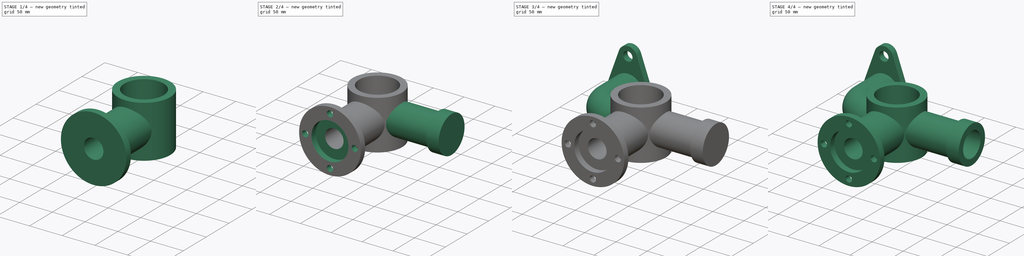
[diagram: build sequence overview — one tinted view per stage of 4, left to right]
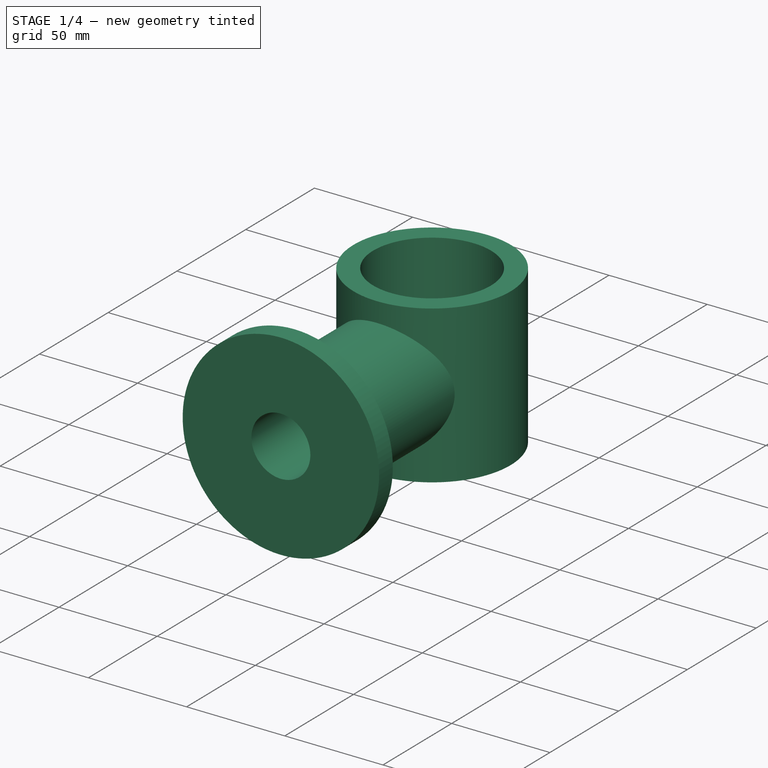
[diagram: stage 1 of 4 — iso view after this stage's code; geometry added in this stage tinted green]
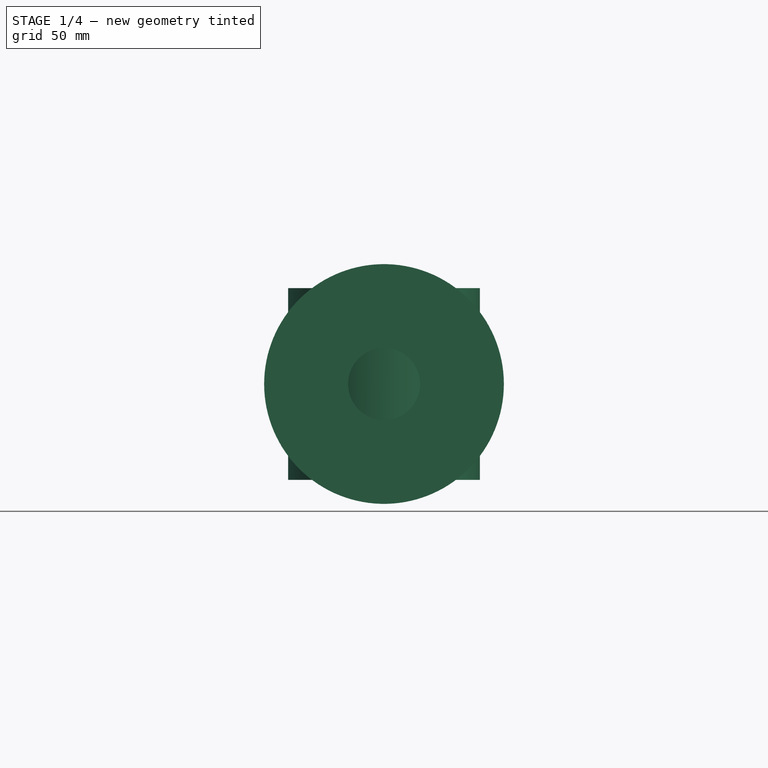
[diagram: stage 1 of 4 — front view after this stage's code; geometry added in this stage tinted green]
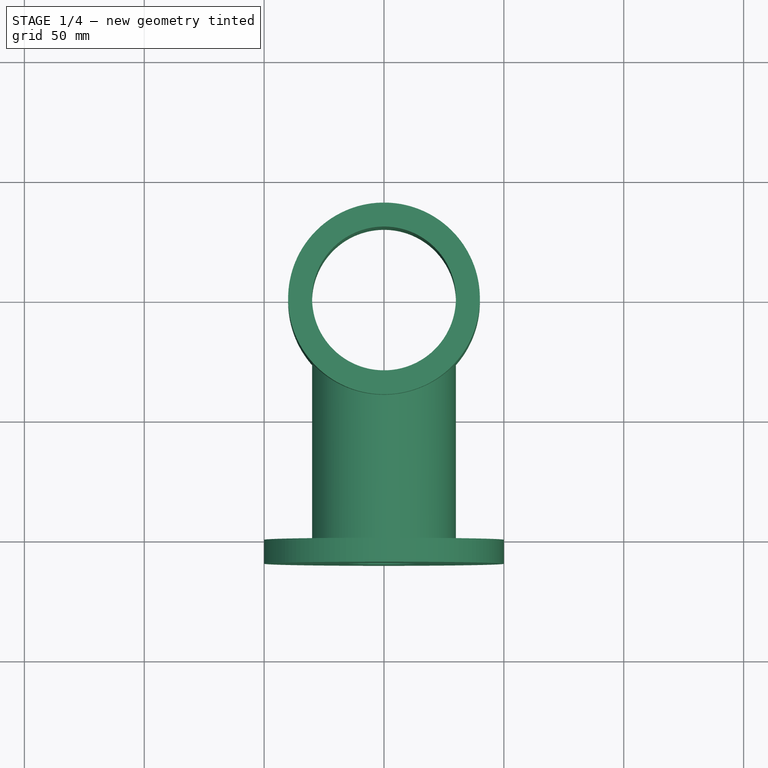
[diagram: stage 1 of 4 — top view after this stage's code; geometry added in this stage tinted green]
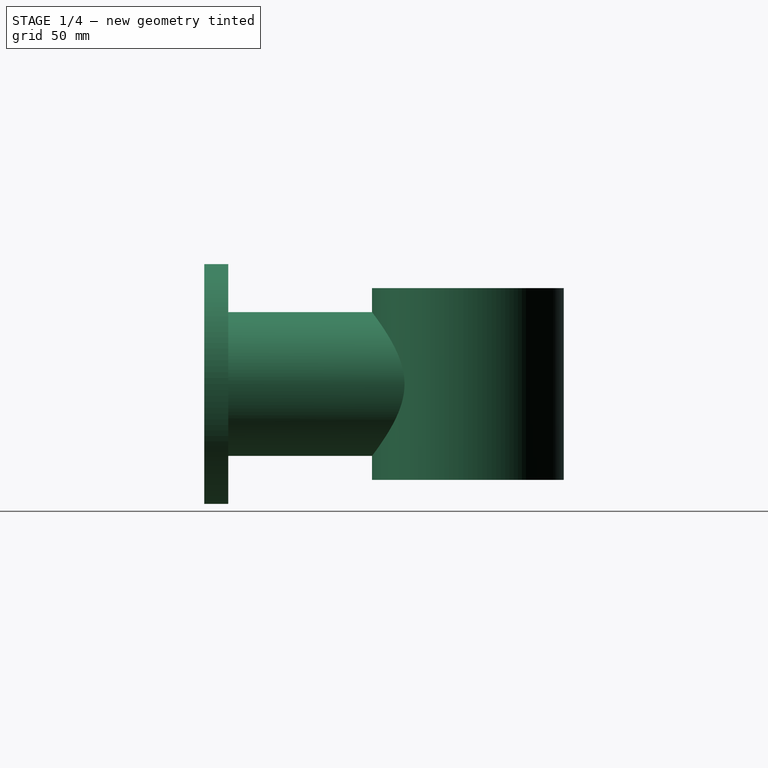
[diagram: stage 1 of 4 — right view after this stage's code; geometry added in this stage tinted green]
FCSTD DOCUMENT  (FreeCAD 1.1R20260325 (Git shallow))
Label: varset_model
License: All rights reserved
LicenseURL: https://en.wikipedia.org/wiki/All_rights_reserved
objects: Sketcher::SketchObject×12, PartDesign::Pad×6, PartDesign::Pocket×4, App::Point×1, App::VarSet×1, PartDesign::AdditivePipe×1, PartDesign::Body×1
note: 58 computed .brp shape members not serialized (recipe doc carries the construction recipe); baked Part::Feature solids carry a one-line shape summary decoded from their .brp

FEATURE [App::Point] Origin001
  Role = Origin
FEATURE [App::VarSet] VarSet
  base_dia = 100
  base_thickness = 10
  centre_pipe_id = 60
  centre_pipe_len = 80
  centre_pipe_od = 80
  centre_to_centre_dist = 80
  dist = 50
  dist1 = 50
  flange_dia = 30
  left_pipe_base_dia = 60
  left_pipe_base_thickness = 20
  left_pipe_centre_ydist = 40
  left_pipe_id = 40
  left_pipe_od = 50
  left_pipe_zplane = 100
  lpipe_hole = 100
  punch_dia = 10
  rflange_centre_to_centre_dist = 100
  rflange_curvature = 30
  rflange_hole_rad = 15
  rflange_thickness = 10
  right_pipe_id = 40
  right_pipe_od = 50
  rpipe_hole = 37
  vertical_pipe_centre_y = 40
  vertical_pipe_id = 30
  vertical_pipe_od = 60
  vertical_pipe_zplane = 100
  vpipe_hole = 100
  x = 25
  x_right_pipe = -70
  z_right_pipe = -80
  zplane_r = 40
  expr: x_right_pipe = -70 mm
  expr: z_right_pipe = -80 mm
FEATURE [Sketcher::SketchObject] Sketch
  ArcFitTolerance = 1e-06
  AttachmentSupport = -> [Origin]
  ExternalTypes = [0]
  FullyConstrained = true
  MakeInternals = false
  MapMode = 5
  _ExternalGeoVersion = 1
  expr: Constraints[2] = VarSet.centre_pipe_od
  expr: Constraints[3] = VarSet.centre_pipe_id
  sketch-geometry (2):
    g0: Circle CenterX=0 CenterY=0 CenterZ=0 NormalX=0 NormalY=0 NormalZ=1 AngleXU=0 Radius=40
    g1: Circle CenterX=0 CenterY=0 CenterZ=0 NormalX=0 NormalY=0 NormalZ=1 AngleXU=0 Radius=30
  constraints (4):
    c: Coincident(g0,g-1)
    c: Coincident(g1,g0)
    c: Diameter(g0) = 80
    c: Diameter(g1) = 60
FEATURE [PartDesign::Pad] Pad
  Direction = (0,0,1)
  Length = 80
  Length2 = 10
  Profile = -> Sketch
  ReferenceAxis = -> Sketch [N_Axis]
  Refine = true
  SideType = 0
  Suppressed = false
  Type = 0
  Type2 = 0
  expr: Length = VarSet.centre_pipe_len
FEATURE [Sketcher::SketchObject] Sketch001
  ArcFitTolerance = 1e-06
  AttachmentOffset = pos=(0,0,100) rot=(0,0,1;0rad)
  AttachmentSupport = -> [Origin]
  ExternalGeometry = -> [Pad]
  ExternalTypes = [0]
  FullyConstrained = true
  MakeInternals = false
  MapMode = 5
  Placement = pos=(0,-100,2.22e-14) rot=(1,0,0;1.5708rad)
  _ExternalGeoVersion = 1
  expr: .AttachmentOffset.Base.z = VarSet.vertical_pipe_zplane
  expr: Constraints[2] = VarSet.vertical_pipe_centre_y
  expr: Constraints[3] = <<VarSet>>.vertical_pipe_od
  expr: Constraints[4] = <<VarSet>>.vertical_pipe_id
  sketch-geometry (2):
    g0: Circle CenterX=0 CenterY=40 CenterZ=0 NormalX=0 NormalY=0 NormalZ=1 AngleXU=0 Radius=30
    g1: Circle CenterX=0 CenterY=40 CenterZ=0 NormalX=0 NormalY=0 NormalZ=1 AngleXU=0 Radius=15
  constraints (5):
    c: PointOnObject(g0,g-2)
    c: Coincident(g1,g0)
    c: Distance(g0,g-3) = 40
    c: Diameter(g0) = 60
    c: Diameter(g1) = 30
FEATURE [PartDesign::Pad] Pad001
  BaseFeature = -> Pad
  Direction = (0,-1,2e-16)
  Length = 10
  Length2 = 10
  Profile = -> Sketch001
  ReferenceAxis = -> Sketch001 [N_Axis]
  Refine = true
  SideType = 0
  Suppressed = false
  Type = 3
  Type2 = 0
  UpToFace = -> Pad [Face1]
FEATURE [Sketcher::SketchObject] Sketch002
  ArcFitTolerance = 1e-06
  AttachmentSupport = -> [Pad001]
  ExternalGeometry = -> [Pad001]
  ExternalTypes = [0]
  FullyConstrained = true
  MakeInternals = false
  MapMode = 5
  Placement = pos=(0,-100,3.04e-14) rot=(1,0,0;1.5708rad)
  _ExternalGeoVersion = 1
  expr: Constraints[1] = VarSet.base_dia
  sketch-geometry (1):
    g0: Circle CenterX=0 CenterY=40 CenterZ=0 NormalX=0 NormalY=0 NormalZ=1 AngleXU=0 Radius=50
  constraints (2):
    c: Coincident(g0,g-3)
    c: Diameter(g0) = 100
FEATURE [PartDesign::Pad] Pad002
  BaseFeature = -> Pad001
  Direction = (0,-1,2e-16)
  Length = 10
  Length2 = 10
  Profile = -> Sketch002
  ReferenceAxis = -> Sketch002 [N_Axis]
  Refine = true
  SideType = 0
  Suppressed = false
  Type = 0
  Type2 = 0
  expr: Length = VarSet.base_thickness
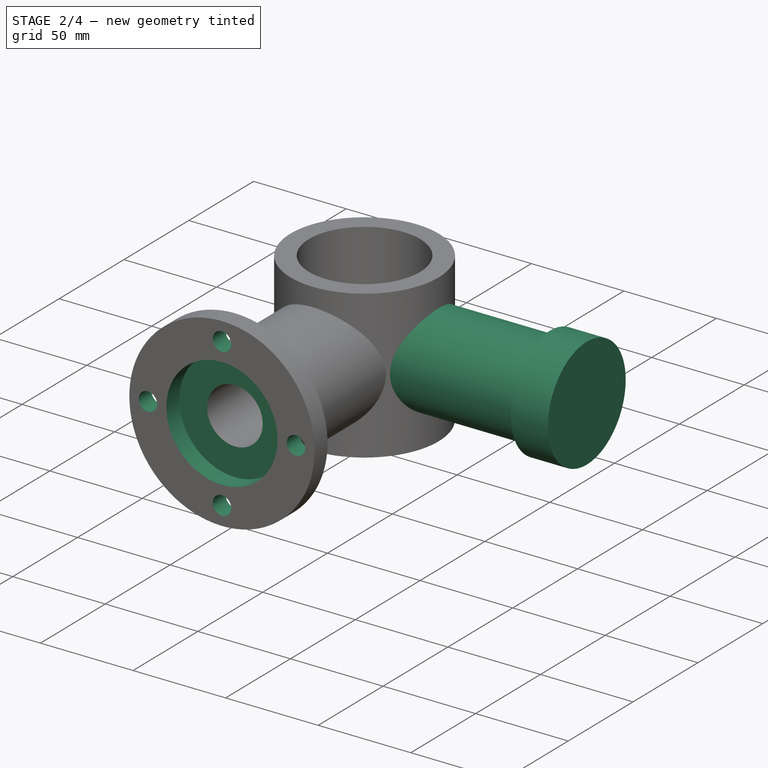
[diagram: stage 2 of 4 — iso view after this stage's code; geometry added in this stage tinted green]
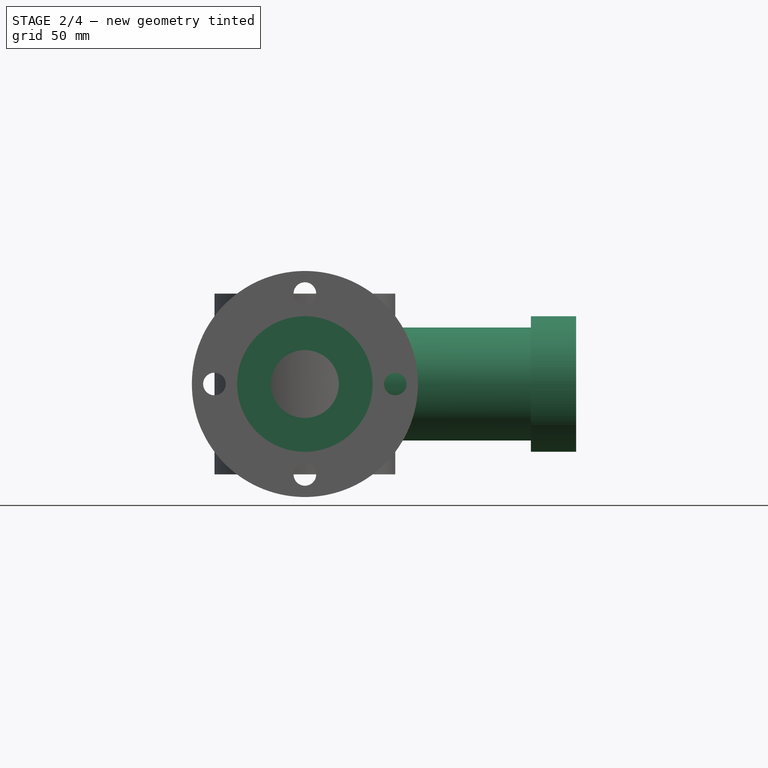
[diagram: stage 2 of 4 — front view after this stage's code; geometry added in this stage tinted green]
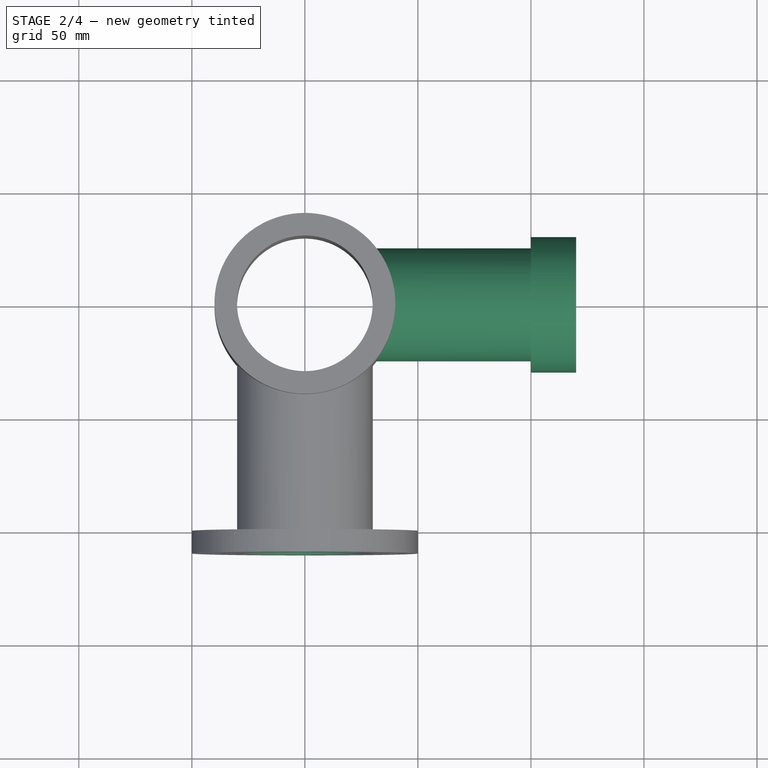
[diagram: stage 2 of 4 — top view after this stage's code; geometry added in this stage tinted green]
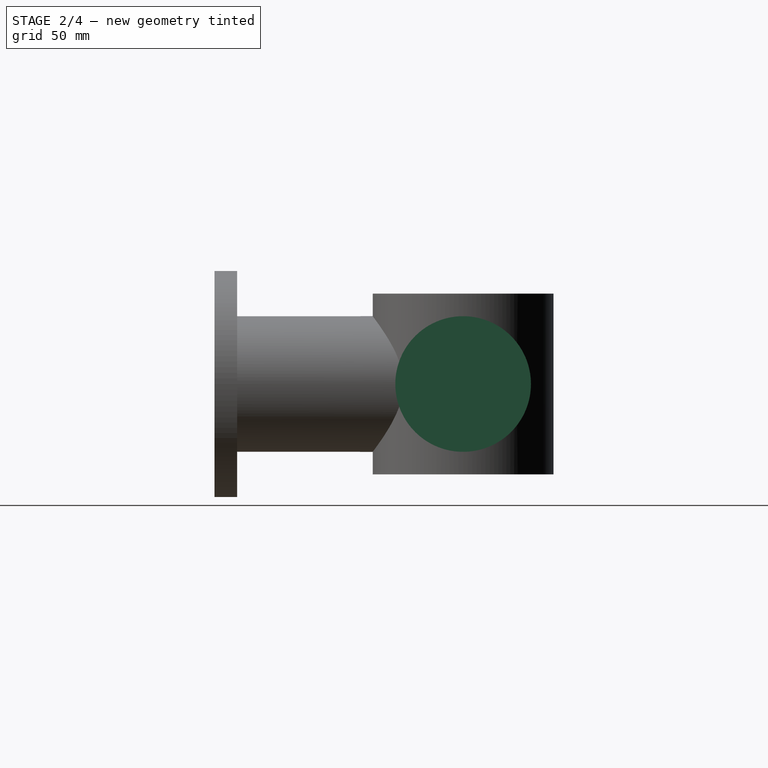
[diagram: stage 2 of 4 — right view after this stage's code; geometry added in this stage tinted green]
FEATURE [Sketcher::SketchObject] Sketch003
  ArcFitTolerance = 1e-06
  AttachmentSupport = -> [Pad002]
  ExternalGeometry = -> [Pad002]
  ExternalTypes = [0]
  FullyConstrained = true
  MakeInternals = false
  MapMode = 5
  Placement = pos=(0,-100,0) rot=(0,0.707107,0.707107;3.14159rad)
  _ExternalGeoVersion = 1
  expr: Constraints[13] = VarSet.punch_dia
  expr: Constraints[6] = VarSet.centre_to_centre_dist
  expr: Constraints[7] = <<VarSet>>.centre_to_centre_dist
  expr: Constraints[9] = <<VarSet>>.centre_to_centre_dist
  sketch-geometry (5):
    g0: Circle CenterX=0 CenterY=80 CenterZ=0 NormalX=0 NormalY=0 NormalZ=1 AngleXU=0 Radius=5
    g1: Circle CenterX=0 CenterY=2.71e-14 CenterZ=0 NormalX=0 NormalY=0 NormalZ=1 AngleXU=0 Radius=5
    g2: Circle CenterX=40 CenterY=40 CenterZ=0 NormalX=0 NormalY=0 NormalZ=1 AngleXU=0 Radius=5
    g3: Circle CenterX=-40 CenterY=40 CenterZ=0 NormalX=0 NormalY=0 NormalZ=1 AngleXU=0 Radius=5
    g4: Circle [constr] CenterX=0 CenterY=40 CenterZ=0 NormalX=0 NormalY=0 NormalZ=1 AngleXU=0 Radius=40
  constraints (14):
    c: PointOnObject(g0,g-2)
    c: PointOnObject(g1,g-2)
    c: Equal(g0,g3)
    c: Equal(g3,g1)
    c: Equal(g1,g2)
    c: Horizontal(g3,g2)
    c: DistanceY(g1,g0) = 80
    c: DistanceX(g3,g2) = 80
    c: Coincident(g4,g-3)
    c: Diameter(g4) = 80
    c: PointOnObject(g0,g4)
    c: PointOnObject(g2,g4)
    c: PointOnObject(g3,g4)
    c: Diameter(g0) = 10
FEATURE [PartDesign::Pocket] Pocket
  BaseFeature = -> Pad002
  Direction = (0,-1,2e-16)
  Length = 5
  Length2 = 5
  Profile = -> Sketch003
  ReferenceAxis = -> Sketch003 [N_Axis]
  Refine = true
  SideType = 0
  Suppressed = false
  Type = 1
  Type2 = 0
FEATURE [Sketcher::SketchObject] Sketch004
  ArcFitTolerance = 1e-06
  AttachmentOffset = pos=(0,0,100) rot=(0,0,1;0rad)
  AttachmentSupport = -> [Origin]
  ExternalGeometry = -> [Pocket]
  ExternalTypes = [0]
  FullyConstrained = true
  MakeInternals = false
  MapMode = 5
  Placement = pos=(100,0,0) rot=(0.57735,0.57735,0.57735;2.0944rad)
  _ExternalGeoVersion = 1
  expr: .AttachmentOffset.Base.z = VarSet.left_pipe_zplane
  expr: Constraints[1] = VarSet.left_pipe_centre_ydist
  expr: Constraints[2] = VarSet.left_pipe_base_dia
  sketch-geometry (1):
    g0: Circle CenterX=0 CenterY=40 CenterZ=0 NormalX=0 NormalY=0 NormalZ=1 AngleXU=0 Radius=30
  constraints (3):
    c: PointOnObject(g0,g-2)
    c: Distance(g0,g-3) = 40
    c: Diameter(g0) = 60
FEATURE [PartDesign::Pad] Pad003
  BaseFeature = -> Pocket
  Direction = (1,0,0)
  Length = 20
  Length2 = 10
  Profile = -> Sketch004
  ReferenceAxis = -> Sketch004 [N_Axis]
  Refine = true
  SideType = 0
  Suppressed = false
  Type = 0
  Type2 = 0
  expr: Length = VarSet.left_pipe_base_thickness
FEATURE [Sketcher::SketchObject] Sketch005
  ArcFitTolerance = 1e-06
  AttachmentSupport = -> [Pad003]
  ExternalGeometry = -> [Pad003]
  ExternalTypes = [0]
  FullyConstrained = true
  MakeInternals = false
  MapMode = 5
  Placement = pos=(100,0,0) rot=(0.57735,-0.57735,-0.57735;2.0944rad)
  _ExternalGeoVersion = 1
  expr: Constraints[2] = VarSet.left_pipe_od
  expr: Constraints[3] = VarSet.left_pipe_id
  sketch-geometry (2):
    g0: Circle CenterX=0 CenterY=40 CenterZ=0 NormalX=0 NormalY=0 NormalZ=1 AngleXU=0 Radius=25
    g1: Circle CenterX=0 CenterY=40 CenterZ=0 NormalX=0 NormalY=0 NormalZ=1 AngleXU=0 Radius=20
  constraints (4):
    c: Coincident(g0,g-3)
    c: Coincident(g1,g0)
    c: Diameter(g0) = 50
    c: Diameter(g1) = 40
FEATURE [PartDesign::Pad] Pad004
  BaseFeature = -> Pad003
  Direction = (-1,0,0)
  Length = 10
  Length2 = 10
  Profile = -> Sketch005
  ReferenceAxis = -> Sketch005 [N_Axis]
  Refine = true
  SideType = 0
  Suppressed = false
  Type = 3
  Type2 = 0
  UpToFace = -> Pad003 [Face5]
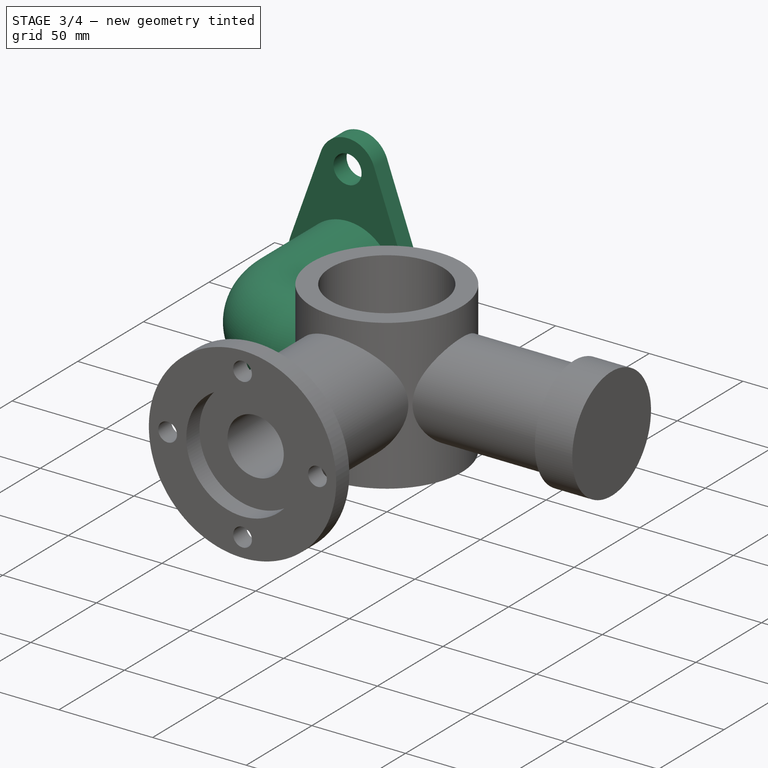
[diagram: stage 3 of 4 — iso view after this stage's code; geometry added in this stage tinted green]
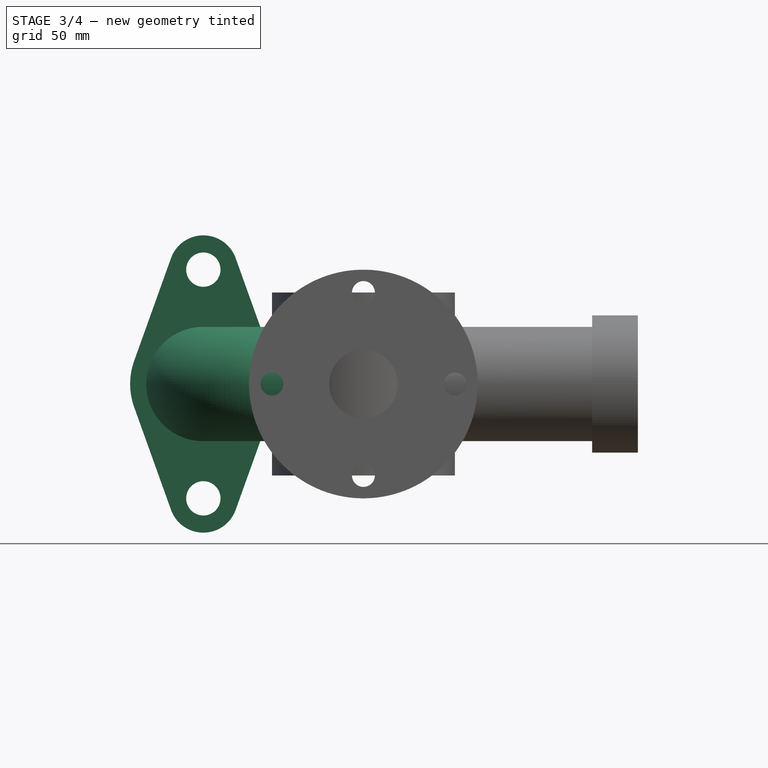
[diagram: stage 3 of 4 — front view after this stage's code; geometry added in this stage tinted green]
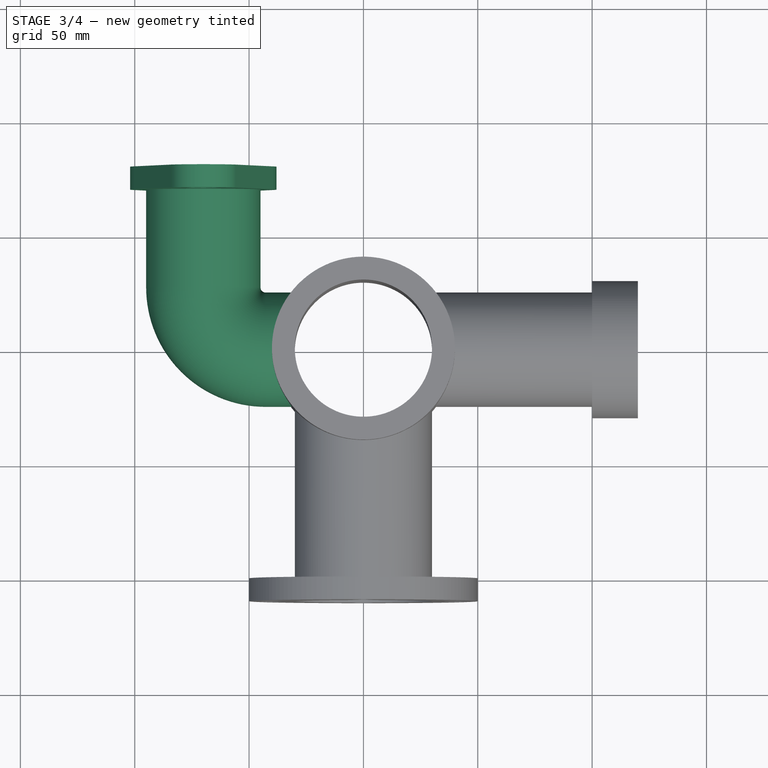
[diagram: stage 3 of 4 — top view after this stage's code; geometry added in this stage tinted green]
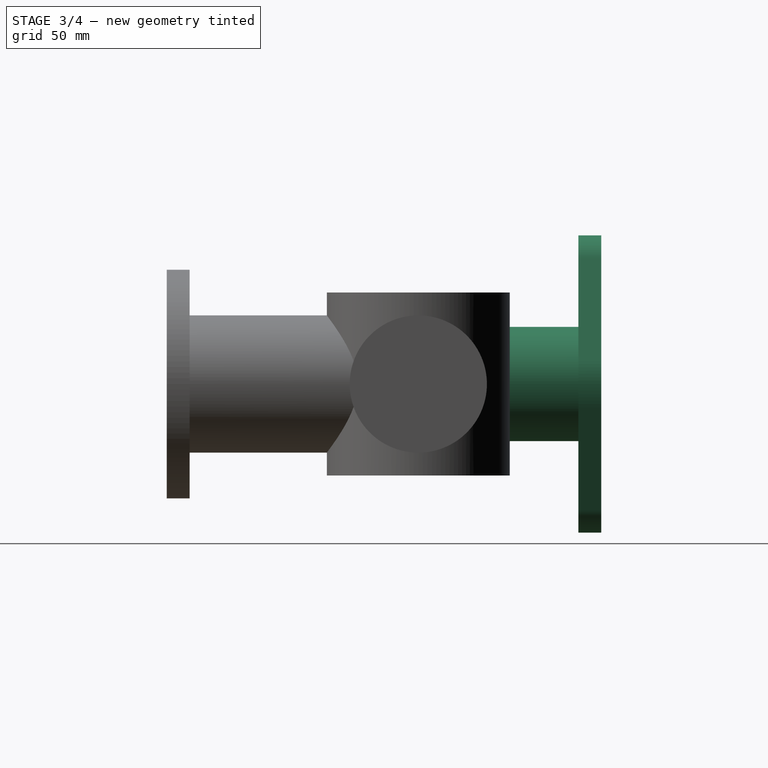
[diagram: stage 3 of 4 — right view after this stage's code; geometry added in this stage tinted green]
FEATURE [Sketcher::SketchObject] Sketch006
  ArcFitTolerance = 1e-06
  AttachmentOffset = pos=(-70,0,-80) rot=(0,0,1;0rad)
  AttachmentSupport = -> [Origin]
  ExternalGeometry = -> [Pad004]
  ExternalTypes = [0,0]
  FullyConstrained = true
  MakeInternals = false
  MapMode = 5
  Placement = pos=(-70,80,-1.78e-14) rot=(1,0,0;1.5708rad)
  _ExternalGeoVersion = 1
  expr: .AttachmentOffset.Base.x = VarSet.x_right_pipe
  expr: .AttachmentOffset.Base.z = VarSet.z_right_pipe
  expr: Constraints[10] = VarSet.flange_dia
  expr: Constraints[19] = VarSet.rflange_curvature
  expr: Constraints[21] = VarSet.dist
  expr: Constraints[3] = VarSet.rflange_hole_rad
  expr: Constraints[4] = VarSet.rflange_centre_to_centre_dist
  sketch-geometry (10):
    g0: Circle CenterX=0 CenterY=90 CenterZ=0 NormalX=0 NormalY=0 NormalZ=1 AngleXU=0 Radius=7.5
    g1: Circle CenterX=0 CenterY=-10 CenterZ=0 NormalX=0 NormalY=0 NormalZ=1 AngleXU=0 Radius=7.5
    g2: ArcOfCircle CenterX=0 CenterY=90 CenterZ=0 NormalX=0 NormalY=0 NormalZ=1 AngleXU=0 Radius=15 StartAngle=0.344579 EndAngle=2.79701
    g3: ArcOfCircle CenterX=0 CenterY=-10 CenterZ=0 NormalX=0 NormalY=0 NormalZ=1 AngleXU=0 Radius=15 StartAngle=3.48617 EndAngle=5.93861
    g4: LineSegment StartX=-14.1183 StartY=95.067 StartZ=0 EndX=-30.2446 EndY=50.134 EndZ=0
    g5: ArcOfCircle CenterX=-2.00808 CenterY=40 CenterZ=0 NormalX=0 NormalY=0 NormalZ=1 AngleXU=0 Radius=30 StartAngle=2.79701 EndAngle=3.48617
    g6: LineSegment StartX=-30.2446 StartY=29.866 StartZ=0 EndX=-14.1183 EndY=-15.067 EndZ=0
    g7: LineSegment StartX=14.1183 StartY=95.067 StartZ=0 EndX=30.2446 EndY=50.134 EndZ=0
    g8: ArcOfCircle CenterX=2.00808 CenterY=40 CenterZ=0 NormalX=0 NormalY=0 NormalZ=1 AngleXU=0 Radius=30 StartAngle=5.93861 EndAngle=6.62776
    g9: LineSegment StartX=30.2446 StartY=29.866 StartZ=0 EndX=14.1183 EndY=-15.067 EndZ=0
  constraints (24):
    c: PointOnObject(g0,g-2)
    c: PointOnObject(g1,g-2)
    c: Equal(g0,g1)
    c: Diameter(g0) = 15
    c: DistanceY(g1,g0) = 100
    c: Coincident(g2,g0)
    c: Coincident(g3,g1)
    c: Tangent(g4,g5) = -1.5708
    c: Tangent(g7,g8) = 1.5708
    c: Tangent(g8,g9) = 1.5708
    c: Diameter(g2) = 30
    c: Tangent(g4,g2) = -1.5708
    c: Tangent(g7,g2) = 1.5708
    c: Tangent(g6,g3) = -1.5708
    c: Tangent(g9,g3) = 1.5708
    c: Equal(g2,g3)
    c: Horizontal(g4,g7)
    c: Horizontal(g5,g8)
    c: Tangent(g5,g6) = -1.5708
    c: Radius(g5) = 30
    c: Equal(g5,g8)
    c: DistanceY(g-3,g0) = 50
    c: Equal(g4,g6)
    c: Block(g4)
FEATURE [PartDesign::Pad] Pad005
  BaseFeature = -> Pad004
  Direction = (0,-1,2e-16)
  Length = 10
  Length2 = 10
  Profile = -> Sketch006
  ReferenceAxis = -> Sketch006 [N_Axis]
  Refine = true
  SideType = 0
  Suppressed = false
  Type = 0
  Type2 = 0
  expr: Length = VarSet.rflange_thickness
FEATURE [Sketcher::SketchObject] Sketch007
  ArcFitTolerance = 1e-06
  AttachmentSupport = -> [Pad005]
  ExternalGeometry = -> [Pad005]
  ExternalTypes = [0]
  FullyConstrained = true
  MakeInternals = false
  MapMode = 5
  Placement = pos=(0,70,0) rot=(1,0,0;1.5708rad)
  _ExternalGeoVersion = 1
  expr: Constraints[1] = VarSet.dist1
  expr: Constraints[2] = VarSet.right_pipe_od
  expr: Constraints[4] = VarSet.right_pipe_id
  sketch-geometry (2):
    g0: Circle CenterX=-70 CenterY=40 CenterZ=0 NormalX=0 NormalY=0 NormalZ=1 AngleXU=0 Radius=25
    g1: Circle CenterX=-70 CenterY=40 CenterZ=0 NormalX=0 NormalY=0 NormalZ=1 AngleXU=0 Radius=20
  constraints (5):
    c: Vertical(g-3,g0)
    c: DistanceY(g0,g-3) = 50
    c: Diameter(g0) = 50
    c: Coincident(g1,g0)
    c: Diameter(g1) = 40
FEATURE [Sketcher::SketchObject] Sketch008
  ArcFitTolerance = 1e-06
  AttachmentOffset = pos=(0,0,40) rot=(0,0,1;0rad)
  AttachmentSupport = -> [Origin]
  ExternalGeometry = -> [Sketch007]
  ExternalTypes = [0]
  FullyConstrained = true
  MakeInternals = false
  MapMode = 5
  Placement = pos=(0,0,40) rot=(0,0,1;0rad)
  _ExternalGeoVersion = 1
  expr: .AttachmentOffset.Base.z = VarSet.zplane_r
  expr: Constraints[4] = VarSet.x
  sketch-geometry (4):
    g0: LineSegment StartX=-31.4306 StartY=0 StartZ=0 EndX=-42.7952 EndY=0 EndZ=0
    g1: LineSegment StartX=-70 StartY=27.2048 StartZ=0 EndX=-70 EndY=70 EndZ=0
    g2: ArcOfCircle CenterX=-42.7952 CenterY=27.2048 CenterZ=0 NormalX=0 NormalY=0 NormalZ=1 AngleXU=0 Radius=27.2048 StartAngle=3.14159 EndAngle=4.71239
    g3: GeomPoint [constr] X=-70 Y=0 Z=0
  constraints (10):
    c: PointOnObject(g0,g-1)
    c: PointOnObject(g3,g-1)
    c: Vertical(g1)
    c: PointOnObject(g1,g-3)
    c: Distance(g-3,g1) = 25
    c: PointOnObject(g3,g0)
    c: PointOnObject(g3,g1)
    c: Tangent(g0,g2) = 1.5708
    c: Tangent(g1,g2) = 1.5708
    c: Block(g0)
FEATURE [PartDesign::AdditivePipe] AdditivePipe
  AuxiliaryCurvilinear = true
  AuxiliarySpineTangent = false
  BaseFeature = -> Pad005
  Binormal = (0,0,0)
  Mode = 0
  Profile = -> Sketch007
  Refine = true
  Spine = -> Sketch008
  SpineTangent = false
  Suppressed = false
  Transformation = 0
  Transition = 0
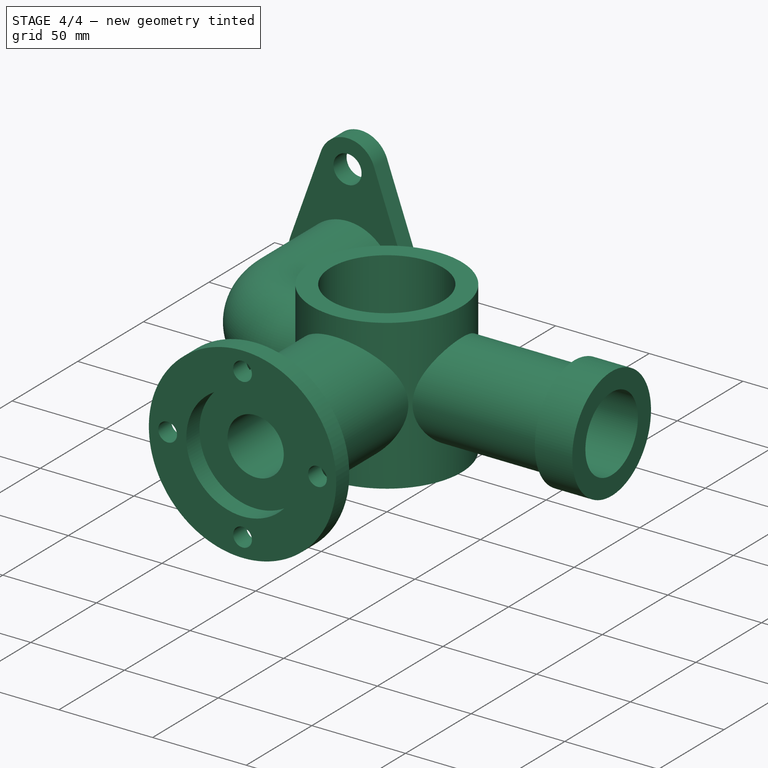
[diagram: stage 4 of 4 — iso view after this stage's code; geometry added in this stage tinted green]
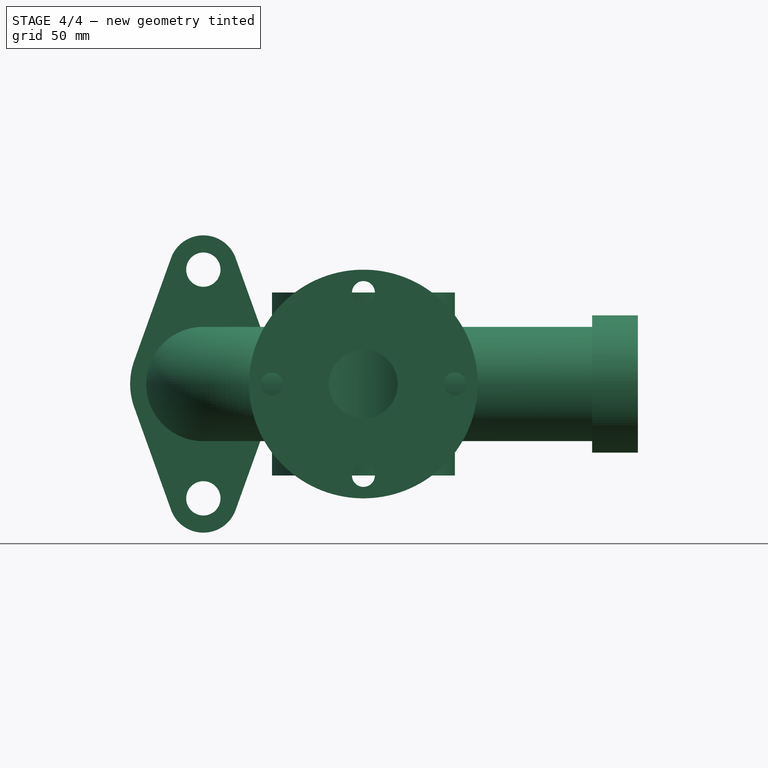
[diagram: stage 4 of 4 — front view after this stage's code; geometry added in this stage tinted green]
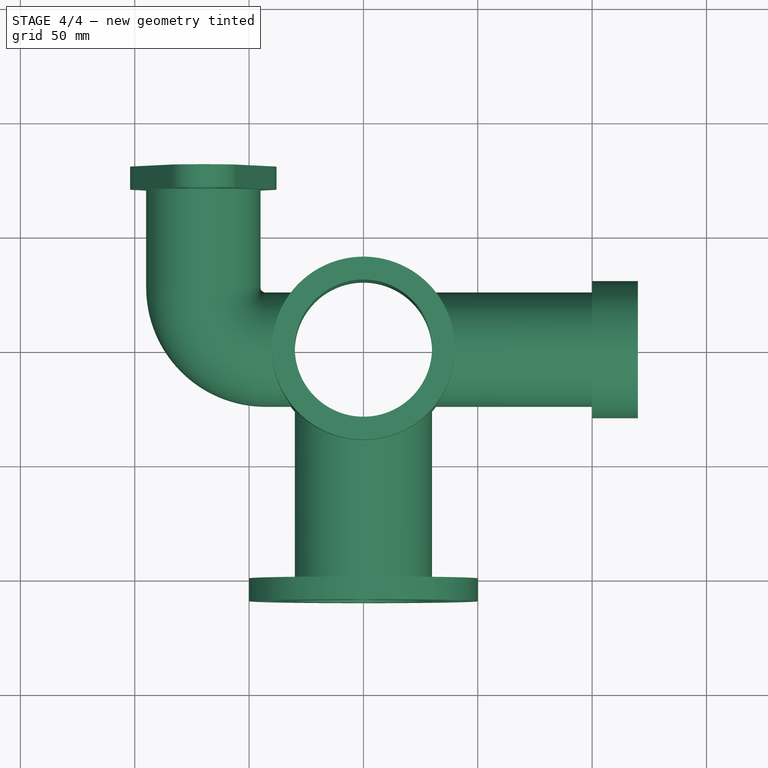
[diagram: stage 4 of 4 — top view after this stage's code; geometry added in this stage tinted green]
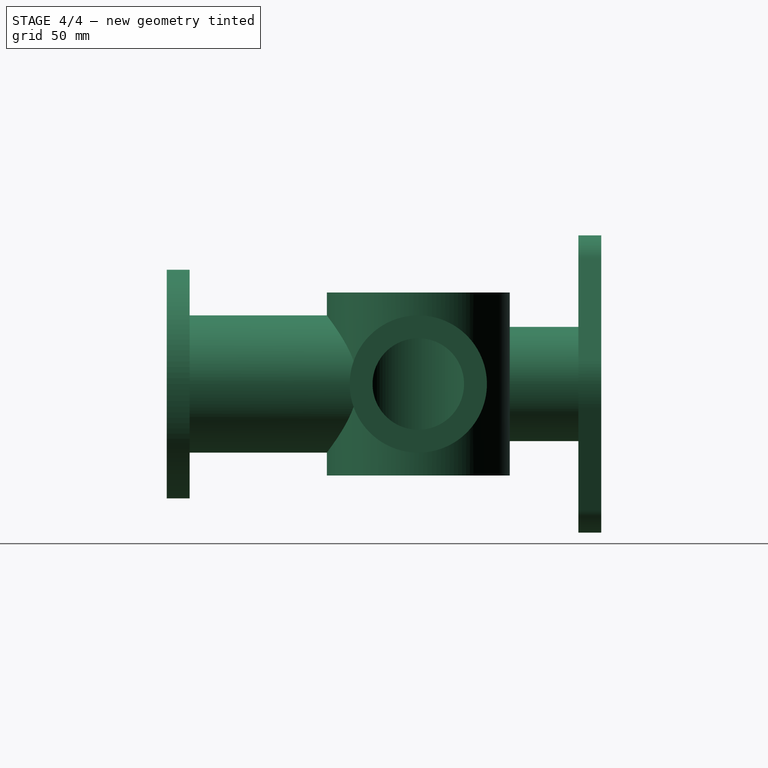
[diagram: stage 4 of 4 — right view after this stage's code; geometry added in this stage tinted green]
FEATURE [Sketcher::SketchObject] Sketch009
  ArcFitTolerance = 1e-06
  AttachmentSupport = -> [AdditivePipe]
  ExternalGeometry = -> [AdditivePipe]
  ExternalTypes = [0]
  FullyConstrained = true
  MakeInternals = false
  MapMode = 5
  Placement = pos=(0,-100,0) rot=(1,0,0;1.5708rad)
  _ExternalGeoVersion = 1
  sketch-geometry (1):
    g0: Circle CenterX=0 CenterY=40 CenterZ=0 NormalX=0 NormalY=0 NormalZ=1 AngleXU=0 Radius=15
  constraints (2):
    c: Coincident(g0,g-3)
    c: Equal(g0,g-3)
FEATURE [PartDesign::Pocket] Pocket001
  BaseFeature = -> AdditivePipe
  Direction = (0,1,-2e-16)
  Length = 100
  Length2 = 5
  Profile = -> Sketch009
  ReferenceAxis = -> Sketch009 [N_Axis]
  Refine = true
  SideType = 0
  Suppressed = false
  Type = 0
  Type2 = 0
  expr: Length = VarSet.vpipe_hole
FEATURE [Sketcher::SketchObject] Sketch010
  ArcFitTolerance = 1e-06
  AttachmentSupport = -> [Pocket001]
  ExternalGeometry = -> [Pocket001]
  ExternalTypes = [0]
  FullyConstrained = true
  MakeInternals = false
  MapMode = 5
  Placement = pos=(120,0,0) rot=(0.57735,0.57735,0.57735;2.0944rad)
  _ExternalGeoVersion = 1
  expr: Constraints[1] = <<VarSet>>.left_pipe_id
  sketch-geometry (1):
    g0: Circle CenterX=0 CenterY=40 CenterZ=0 NormalX=0 NormalY=0 NormalZ=1 AngleXU=0 Radius=20
  constraints (2):
    c: Coincident(g0,g-3)
    c: Diameter(g0) = 40
FEATURE [PartDesign::Pocket] Pocket002
  BaseFeature = -> Pocket001
  Direction = (-1,0,0)
  Length = 100
  Length2 = 5
  Profile = -> Sketch010
  ReferenceAxis = -> Sketch010 [N_Axis]
  Refine = true
  SideType = 0
  Suppressed = false
  Type = 0
  Type2 = 0
  expr: Length = VarSet.lpipe_hole
FEATURE [Sketcher::SketchObject] Sketch011
  ArcFitTolerance = 1e-06
  AttachmentSupport = -> [Pocket002]
  ExternalGeometry = -> [Pocket002]
  ExternalTypes = [0]
  FullyConstrained = true
  MakeInternals = false
  MapMode = 5
  Placement = pos=(0,80,0) rot=(0,0.707107,0.707107;3.14159rad)
  _ExternalGeoVersion = 1
  expr: Constraints[1] = <<VarSet>>.rflange_centre_to_centre_dist / 2
  expr: Constraints[2] = <<VarSet>>.right_pipe_id
  sketch-geometry (1):
    g0: Circle CenterX=70 CenterY=40 CenterZ=0 NormalX=0 NormalY=0 NormalZ=1 AngleXU=0 Radius=20
  constraints (3):
    c: Vertical(g0,g-11)
    c: DistanceY(g0,g-11) = 50
    c: Diameter(g0) = 40
FEATURE [PartDesign::Pocket] Pocket003
  BaseFeature = -> Pocket002
  Direction = (0,-1,2e-16)
  Length = 10
  Length2 = 5
  Profile = -> Sketch011
  ReferenceAxis = -> Sketch011 [N_Axis]
  Refine = true
  SideType = 0
  Suppressed = false
  Type = 0
  Type2 = 0
  expr: Length = <<VarSet>>.rflange_thickness
FEATURE [PartDesign::Body] Body
  AllowCompound = true
  Group = -> [Sketch,Pad,Sketch001,Pad001,Sketch002,Pad002,Sketch003,Pocket,Sketch004,Pad003,Sketch005,Pad004,Sketch006,Pad005,Sketch007,Sketch008,AdditivePipe,Sketch009,Pocket001,Sketch010,Pocket002,Sketch011,Pocket003]
  Origin = -> Origin
  Tip = -> Pocket003
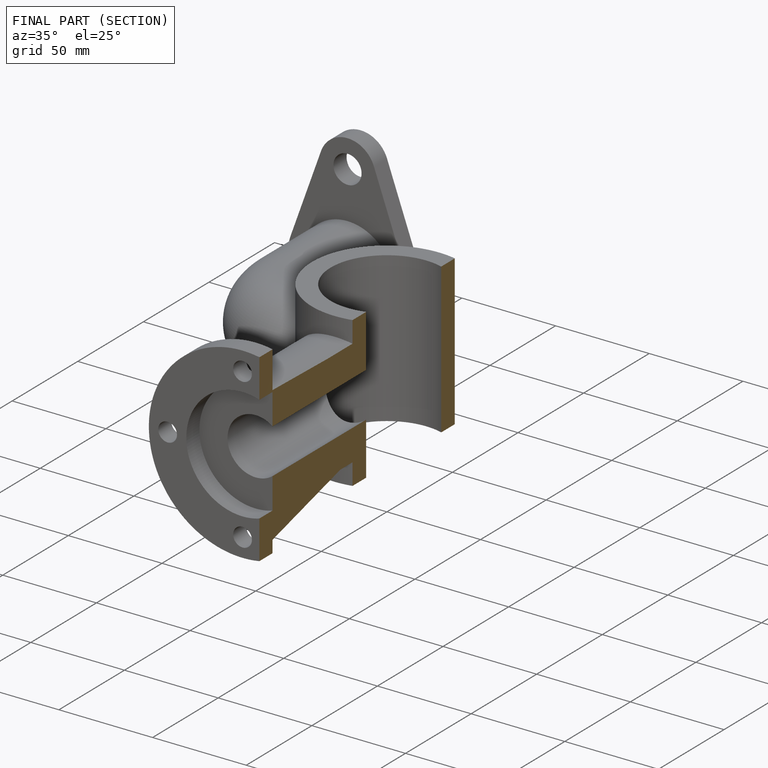
[diagram: finished part — half-section view (interior)]
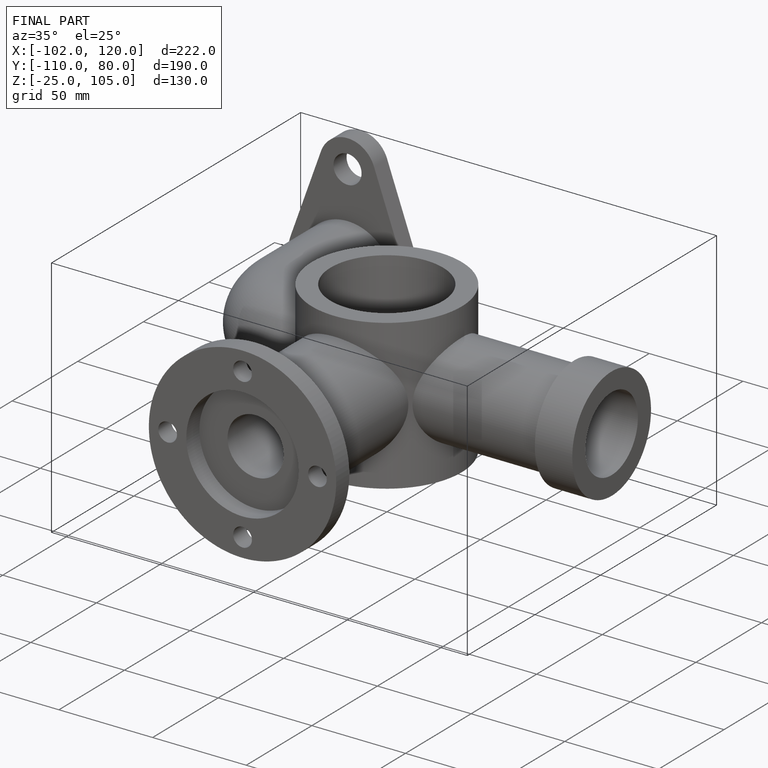
[diagram: finished part — iso view with bounding-box wireframe]
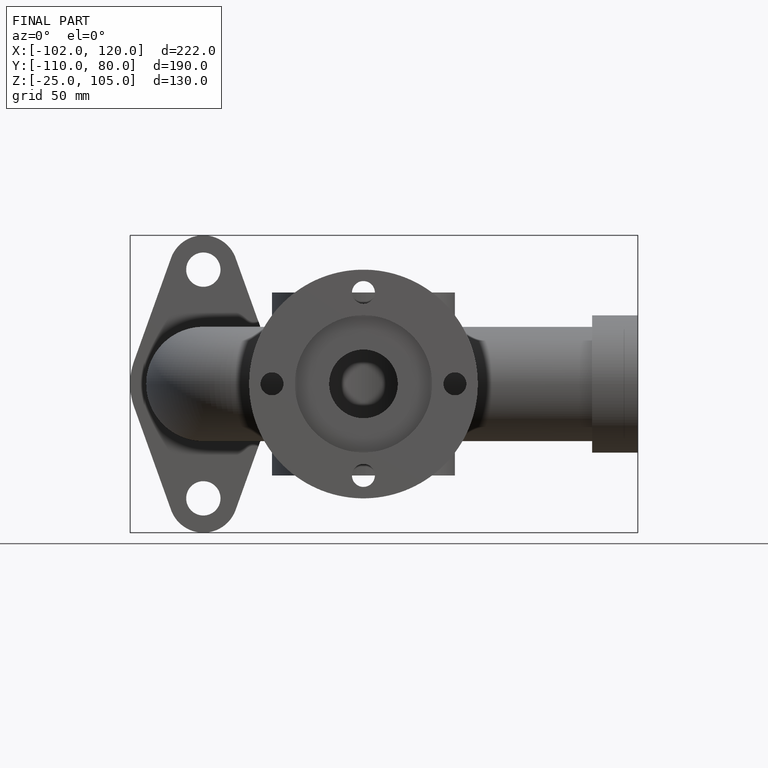
[diagram: finished part — front view with bounding-box wireframe]
